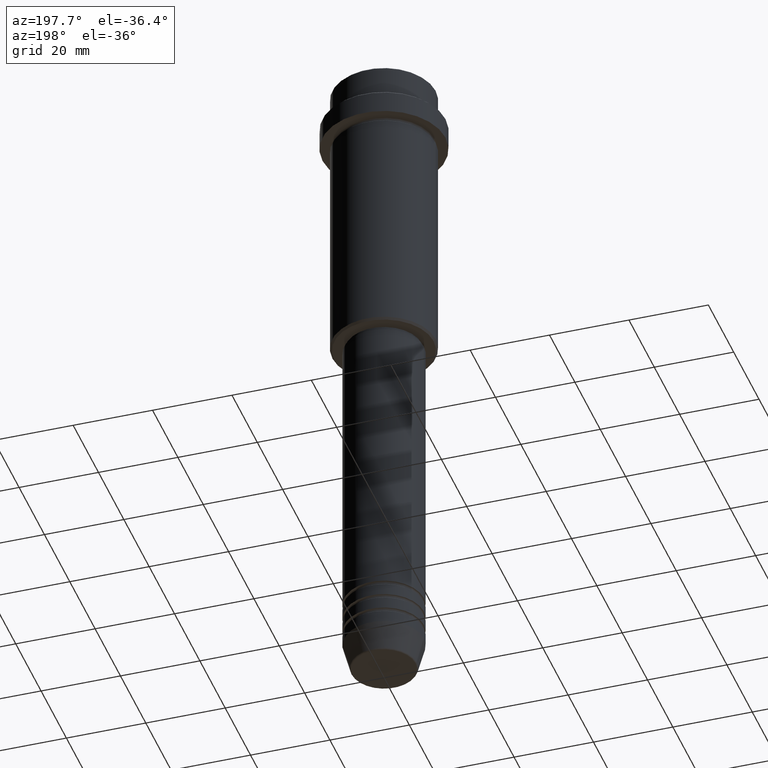
[diagram: clean part render]
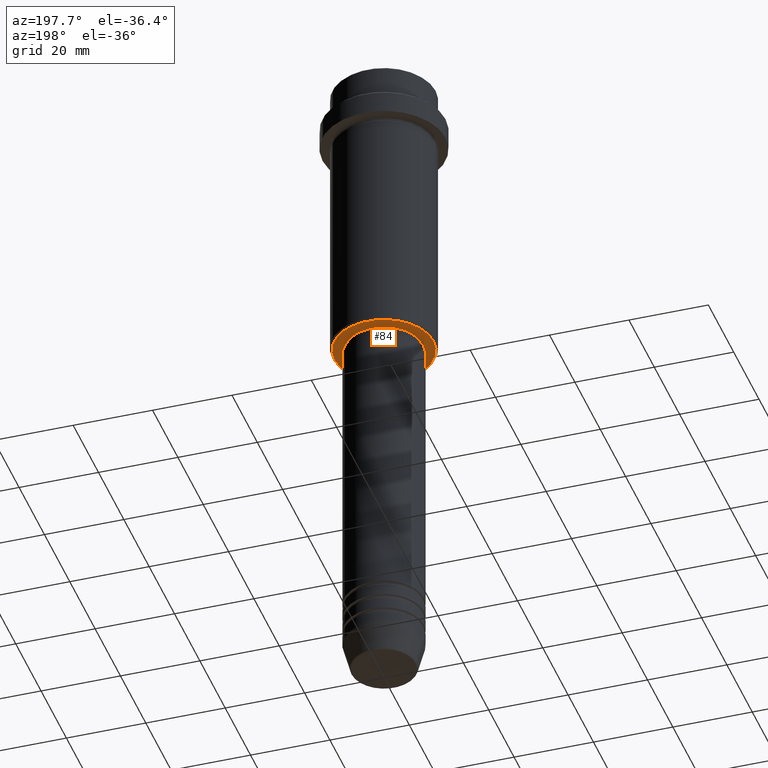
[diagram: same view with one face highlighted and labeled with its STEP entity id]
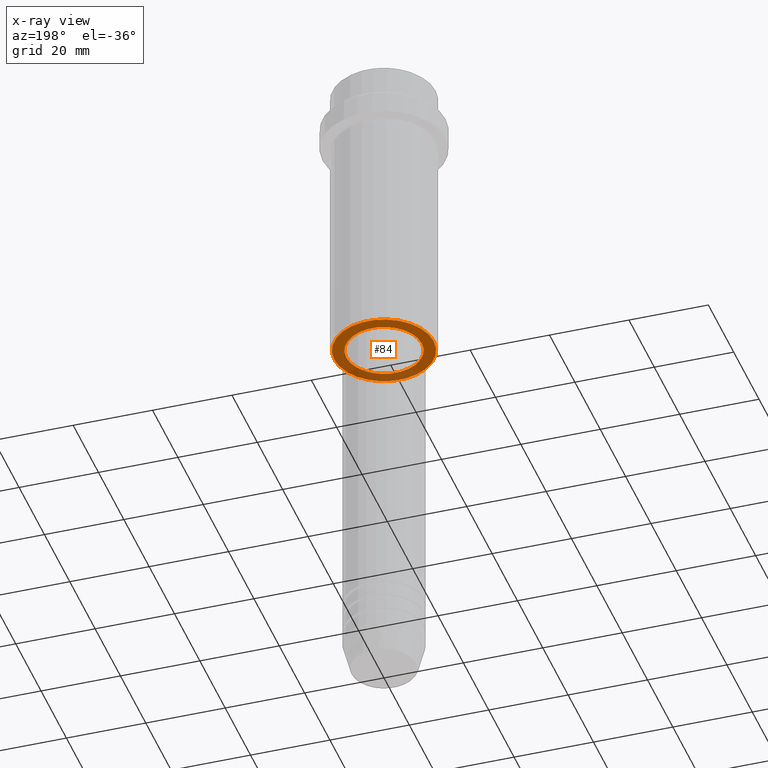
[diagram: x-ray of the same camera — body ghosted, the highlighted face saturated]
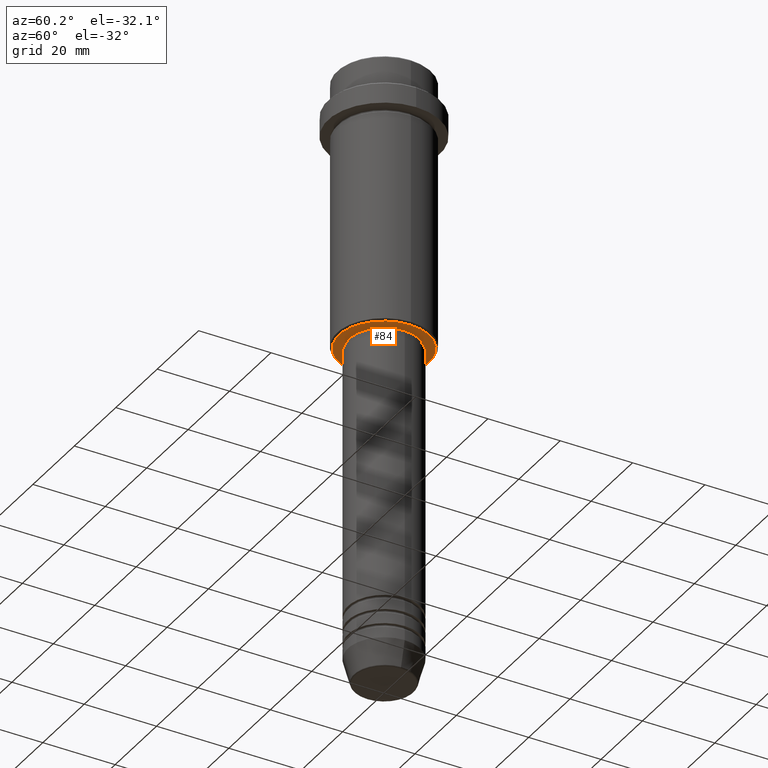
[diagram: same view with one face highlighted and labeled with its STEP entity id]
A machine part, auxiliary view. The second image highlights one B-rep face of the part: STEP entity #84.
The next image is the same camera in x-ray: the body ghosted, the highlighted face saturated — about 23% of this face is hidden behind the body in this view.
A second angle (auxiliary view) of the same face is appended — the face is thin or edge-on in the first view.
In plain terms, the highlighted planar face has unit normal (0, 0, -1).
Its self-contained STEP definition (entity closure, byte-faithful):
#2 = AXIS2_PLACEMENT_3D ( 'NONE', #293, #416, #407 ) ;
#40 = DIRECTION ( 'NONE',  ( 1.000000000000000000, 0.000000000000000000, 0.000000000000000000 ) ) ;
#65 = DIRECTION ( 'NONE',  ( -0.000000000000000000, -0.000000000000000000, 1.000000000000000000 ) ) ;
#84 = ADVANCED_FACE ( 'NONE', ( #1189, #636 ), #436, .T. ) ;
#143 = DIRECTION ( 'NONE',  ( 1.000000000000000000, 0.000000000000000000, 0.000000000000000000 ) ) ;
#174 = CARTESIAN_POINT ( 'NONE',  ( 12.49999999999999645, 0.000000000000000000, -75.00000000000001421 ) ) ;
#180 = CARTESIAN_POINT ( 'NONE',  ( 0.000000000000000000, 0.000000000000000000, -75.00000000000001421 ) ) ;
#240 = CIRCLE ( 'NONE', #1323, 9.499999999999996447 ) ;
#284 = EDGE_CURVE ( 'NONE', #830, #463, #1111, .T. ) ;
#293 = CARTESIAN_POINT ( 'NONE',  ( 0.000000000000000000, 0.000000000000000000, -75.00000000000001421 ) ) ;
#310 = DIRECTION ( 'NONE',  ( -1.000000000000000000, 0.000000000000000000, -0.000000000000000000 ) ) ;
#407 = DIRECTION ( 'NONE',  ( -1.000000000000000000, 0.000000000000000000, 0.000000000000000000 ) ) ;
#416 = DIRECTION ( 'NONE',  ( 0.000000000000000000, 0.000000000000000000, -1.000000000000000000 ) ) ;
#436 = PLANE ( 'NONE',  #1175 ) ;
#447 = CARTESIAN_POINT ( 'NONE',  ( 9.499999999999996447, 0.000000000000000000, -75.00000000000001421 ) ) ;
#463 = VERTEX_POINT ( 'NONE', #688 ) ;
#533 = EDGE_CURVE ( 'NONE', #463, #830, #240, .T. ) ;
#539 = CIRCLE ( 'NONE', #2, 12.49999999999999645 ) ;
#575 = EDGE_LOOP ( 'NONE', ( #1400, #1121 ) ) ;
#598 = DIRECTION ( 'NONE',  ( 0.000000000000000000, 0.000000000000000000, -1.000000000000000000 ) ) ;
#633 = AXIS2_PLACEMENT_3D ( 'NONE', #701, #598, #1154 ) ;
#636 = FACE_BOUND ( 'NONE', #575, .T. ) ;
#658 = EDGE_CURVE ( 'NONE', #730, #1016, #539, .T. ) ;
#688 = CARTESIAN_POINT ( 'NONE',  ( -9.499999999999996447, 1.163414459189985091E-15, -75.00000000000001421 ) ) ;
#701 = CARTESIAN_POINT ( 'NONE',  ( 0.000000000000000000, 0.000000000000000000, -75.00000000000001421 ) ) ;
#730 = VERTEX_POINT ( 'NONE', #1107 ) ;
#775 = CARTESIAN_POINT ( 'NONE',  ( 0.000000000000000000, 0.000000000000000000, -75.00000000000001421 ) ) ;
#830 = VERTEX_POINT ( 'NONE', #447 ) ;
#860 = DIRECTION ( 'NONE',  ( 0.000000000000000000, 0.000000000000000000, -1.000000000000000000 ) ) ;
#971 = CARTESIAN_POINT ( 'NONE',  ( 0.000000000000000000, 13.00000000000000000, -75.00000000000001421 ) ) ;
#1016 = VERTEX_POINT ( 'NONE', #174 ) ;
#1022 = EDGE_CURVE ( 'NONE', #1016, #730, #1123, .T. ) ;
#1089 = AXIS2_PLACEMENT_3D ( 'NONE', #775, #1237, #143 ) ;
#1107 = CARTESIAN_POINT ( 'NONE',  ( -12.49999999999999645, 1.561424668912875111E-15, -75.00000000000001421 ) ) ;
#1111 = CIRCLE ( 'NONE', #1089, 9.499999999999996447 ) ;
#1121 = ORIENTED_EDGE ( 'NONE', *, *, #533, .T. ) ;
#1123 = CIRCLE ( 'NONE', #633, 12.49999999999999645 ) ;
#1136 = EDGE_LOOP ( 'NONE', ( #1233, #1274 ) ) ;
#1154 = DIRECTION ( 'NONE',  ( -1.000000000000000000, 0.000000000000000000, 0.000000000000000000 ) ) ;
#1175 = AXIS2_PLACEMENT_3D ( 'NONE', #971, #860, #310 ) ;
#1189 = FACE_OUTER_BOUND ( 'NONE', #1136, .T. ) ;
#1233 = ORIENTED_EDGE ( 'NONE', *, *, #1022, .T. ) ;
#1237 = DIRECTION ( 'NONE',  ( -0.000000000000000000, -0.000000000000000000, 1.000000000000000000 ) ) ;
#1274 = ORIENTED_EDGE ( 'NONE', *, *, #658, .T. ) ;
#1323 = AXIS2_PLACEMENT_3D ( 'NONE', #180, #65, #40 ) ;
#1400 = ORIENTED_EDGE ( 'NONE', *, *, #284, .T. ) ;